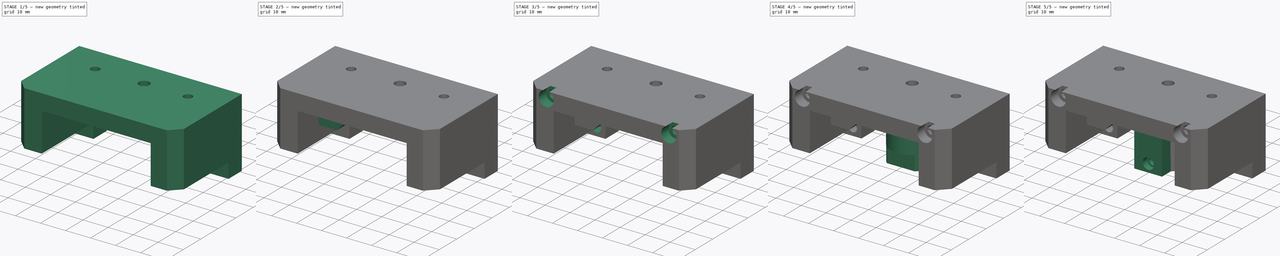
[diagram: build sequence overview — one tinted view per stage of 5, left to right]
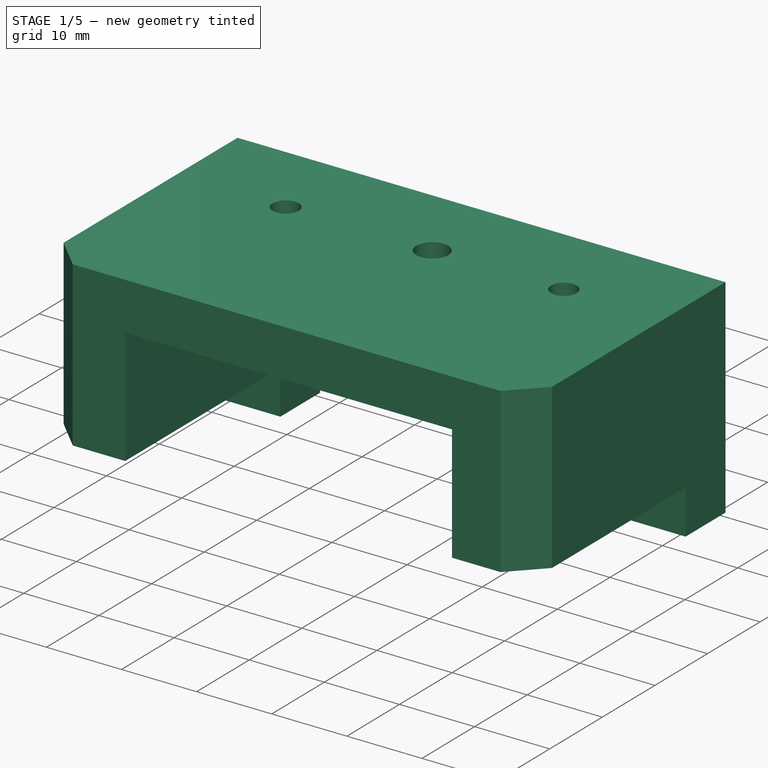
[diagram: stage 1 of 5 — iso view after this stage's code; geometry added in this stage tinted green]
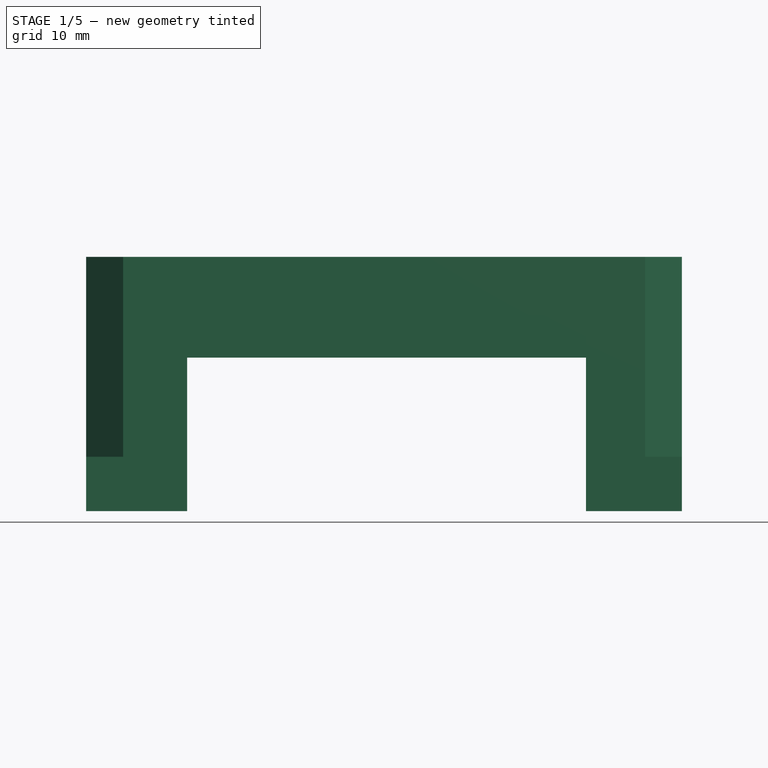
[diagram: stage 1 of 5 — front view after this stage's code; geometry added in this stage tinted green]
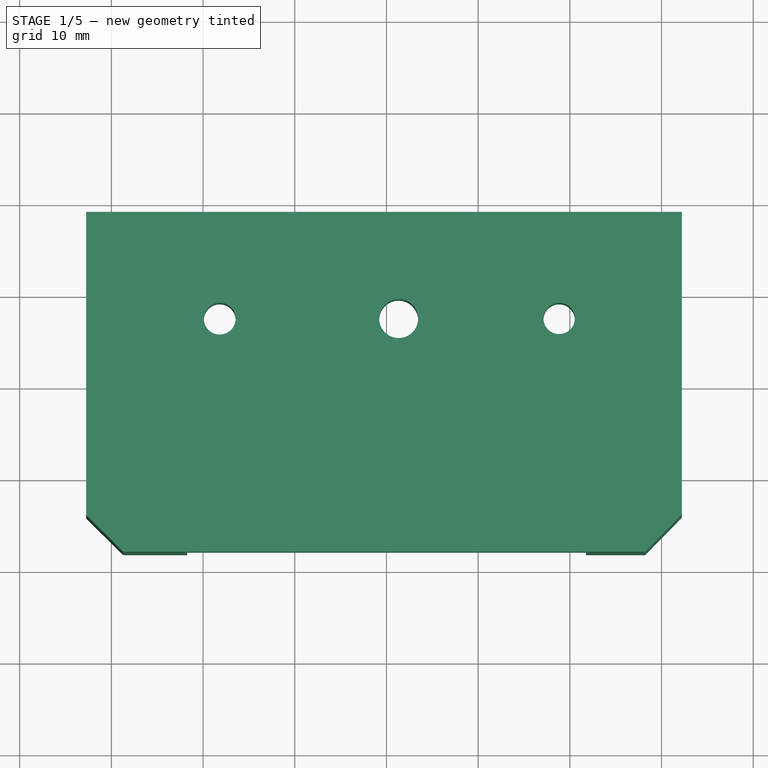
[diagram: stage 1 of 5 — top view after this stage's code; geometry added in this stage tinted green]
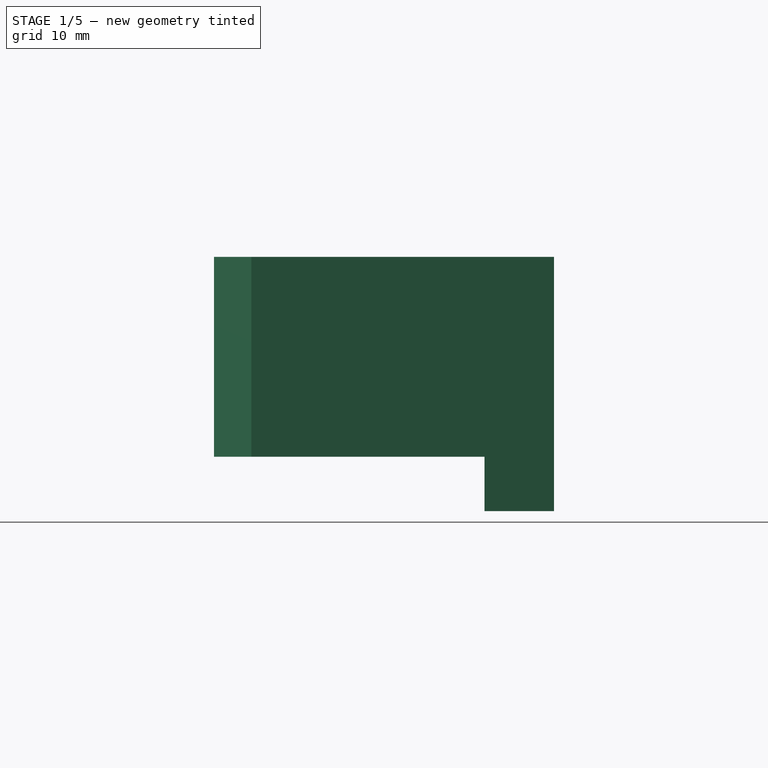
[diagram: stage 1 of 5 — right view after this stage's code; geometry added in this stage tinted green]
FCSTD DOCUMENT  (FreeCAD 0.21R33668 +26 (Git))
Label: Rook_p1p_hotend_V5
License: All rights reserved
LicenseURL: http://en.wikipedia.org/wiki/All_rights_reserved
objects: Sketcher::SketchObject×16, PartDesign::Pocket×8, PartDesign::Pad×7, PartDesign::Hole×3, PartDesign::Body×1
note: 53 computed .brp shape members not serialized (recipe doc carries the construction recipe); baked Part::Feature solids carry a one-line shape summary decoded from their .brp

FEATURE [Sketcher::SketchObject] Sketch
  AttachmentOffset = pos=(0,0,101) rot=(0,0,1;0rad)
  FullyConstrained = false
  MapMode = 5
  Placement = pos=(0,0,101) rot=(0,0,1;0rad)
  Support = -> [XY_Plane026]
  sketch-geometry (9):
    g0: LineSegment StartX=467.255 StartY=18.8238 StartZ=0 EndX=532.209 EndY=18.8238 EndZ=0
    g1: LineSegment StartX=467.255 StartY=-14.2441 StartZ=0 EndX=467.255 EndY=18.8238 EndZ=0
    g2: LineSegment StartX=528.214 StartY=-18.2425 StartZ=0 EndX=471.279 EndY=-18.2425 EndZ=0
    g3: LineSegment StartX=532.209 StartY=18.8238 StartZ=0 EndX=532.209 EndY=-14.1687 EndZ=0
    g4: LineSegment StartX=528.214 StartY=-18.2425 StartZ=0 EndX=532.209 EndY=-14.1687 EndZ=0
    g5: LineSegment StartX=467.255 StartY=-14.2441 StartZ=0 EndX=471.279 EndY=-18.2425 EndZ=0
    g6: Circle CenterX=501.329 CenterY=7.18816 CenterZ=0 NormalX=0 NormalY=0 NormalZ=1 AngleXU=0 Radius=2.12191
    g7: Circle CenterX=518.834 CenterY=7.20363 CenterZ=0 NormalX=0 NormalY=0 NormalZ=1 AngleXU=0 Radius=1.70743
    g8: Circle CenterX=481.821 CenterY=7.17706 CenterZ=0 NormalX=0 NormalY=0 NormalZ=1 AngleXU=0 Radius=1.73301
  constraints (10):
    c: Coincident(g0,g3)
    c: Coincident(g1,g0)
    c: Horizontal(g0)
    c: Vertical(g1)
    c: Horizontal(g2)
    c: Vertical(g3)
    c: Coincident(g4,g2)
    c: Coincident(g4,g3)
    c: Coincident(g5,g1)
    c: Coincident(g5,g2)
FEATURE [PartDesign::Pad] Pad
  Direction = (0,0,1)
  Length = 27.73
  Length2 = 10
  Profile = -> Sketch
  ReferenceAxis = -> Sketch [N_Axis]
  Reversed = true
  Type = 0
FEATURE [Sketcher::SketchObject] Sketch001
  AttachmentOffset = pos=(0,0,466) rot=(0,0,1;0rad)
  FullyConstrained = false
  MapMode = 5
  Placement = pos=(466,-1.035e-13,1.035e-13) rot=(0.57735,0.57735,0.57735;2.0944rad)
  Support = -> [YZ_Plane026]
  sketch-geometry (4):
    g0: LineSegment StartX=-24.7711 StartY=79.2044 StartZ=0 EndX=11.2563 EndY=79.2044 EndZ=0
    g1: LineSegment StartX=11.2563 StartY=79.2044 StartZ=0 EndX=11.2563 EndY=72.213 EndZ=0
    g2: LineSegment StartX=11.2563 StartY=72.213 StartZ=0 EndX=-24.7711 EndY=72.213 EndZ=0
    g3: LineSegment StartX=-24.7711 StartY=72.213 StartZ=0 EndX=-24.7711 EndY=79.2044 EndZ=0
  constraints (8):
    c: Coincident(g0,g1)
    c: Coincident(g1,g2)
    c: Coincident(g2,g3)
    c: Coincident(g3,g0)
    c: Horizontal(g0)
    c: Horizontal(g2)
    c: Vertical(g1)
    c: Vertical(g3)
FEATURE [PartDesign::Pocket] Pocket
  BaseFeature = -> Pad
  Direction = (-1,2e-16,-3e-16)
  Length = 58
  Length2 = 5
  Profile = -> Sketch001
  ReferenceAxis = -> Sketch001 [N_Axis]
  Reversed = true
  Type = 1
FEATURE [Sketcher::SketchObject] Sketch002
  AttachmentOffset = pos=(0,0,18.25) rot=(0,0,1;0rad)
  FullyConstrained = false
  MapMode = 5
  Placement = pos=(0,-18.25,-4.1e-15) rot=(1,0,0;1.5708rad)
  Support = -> [XZ_Plane026]
  sketch-geometry (4):
    g0: LineSegment StartX=478.257 StartY=72.9722 StartZ=0 EndX=521.767 EndY=72.9722 EndZ=0
    g1: LineSegment StartX=521.767 StartY=72.9722 StartZ=0 EndX=521.767 EndY=94.6455 EndZ=0
    g2: LineSegment StartX=521.767 StartY=94.6455 StartZ=0 EndX=478.257 EndY=94.6455 EndZ=0
    g3: LineSegment StartX=478.257 StartY=94.6455 StartZ=0 EndX=478.257 EndY=72.9722 EndZ=0
  constraints (9):
    c: Coincident(g0,g1)
    c: Coincident(g1,g2)
    c: Coincident(g2,g3)
    c: Coincident(g3,g0)
    c: Horizontal(g0)
    c: Horizontal(g2)
    c: Vertical(g1)
    c: Vertical(g3)
    c: Distance(g2) = 43.51
FEATURE [Sketcher::SketchObject] Sketch003
  AttachmentOffset = pos=(0,0,93) rot=(0,0,1;0rad)
  FullyConstrained = false
  MapMode = 5
  Placement = pos=(0,-93,-2.07e-14) rot=(1,0,0;1.5708rad)
  Support = -> [XZ_Plane026]
  sketch-geometry (4):
    g0: LineSegment StartX=478.256 StartY=72.9722 StartZ=0 EndX=521.766 EndY=72.9722 EndZ=0
    g1: LineSegment StartX=521.766 StartY=72.9722 StartZ=0 EndX=521.766 EndY=90.0049 EndZ=0
    g2: LineSegment StartX=521.766 StartY=90.0049 StartZ=0 EndX=478.256 EndY=90.0049 EndZ=0
    g3: LineSegment StartX=478.256 StartY=90.0049 StartZ=0 EndX=478.256 EndY=72.9722 EndZ=0
  constraints (9):
    c: Coincident(g0,g1)
    c: Coincident(g1,g2)
    c: Coincident(g2,g3)
    c: Coincident(g3,g0)
    c: Horizontal(g0)
    c: Horizontal(g2)
    c: Vertical(g1)
    c: Vertical(g3)
    c: Distance(g2) = 43.51
FEATURE [PartDesign::Pocket] Pocket001
  BaseFeature = -> Pocket
  Direction = (0,1,-2e-16)
  Length = 5
  Length2 = 5
  Profile = -> Sketch003
  ReferenceAxis = -> Sketch003 [N_Axis]
  Type = 1
FEATURE [PartDesign::Pocket] Pocket002
  BaseFeature = -> Pocket001
  Direction = (0,1,-2e-16)
  Length = 12
  Length2 = 5
  Profile = -> Sketch002
  ReferenceAxis = -> Sketch002 [N_Axis]
  Type = 0
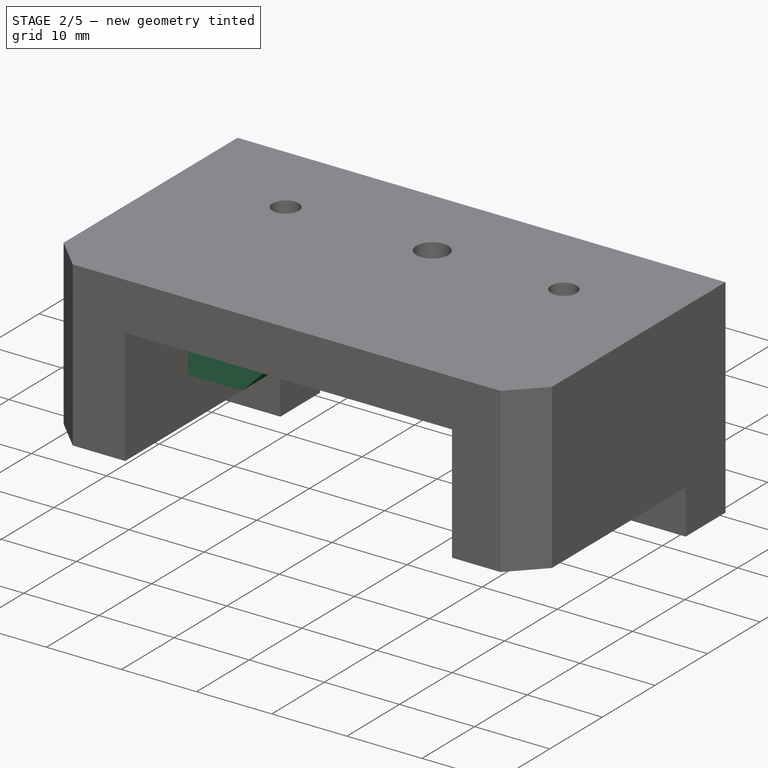
[diagram: stage 2 of 5 — iso view after this stage's code; geometry added in this stage tinted green]
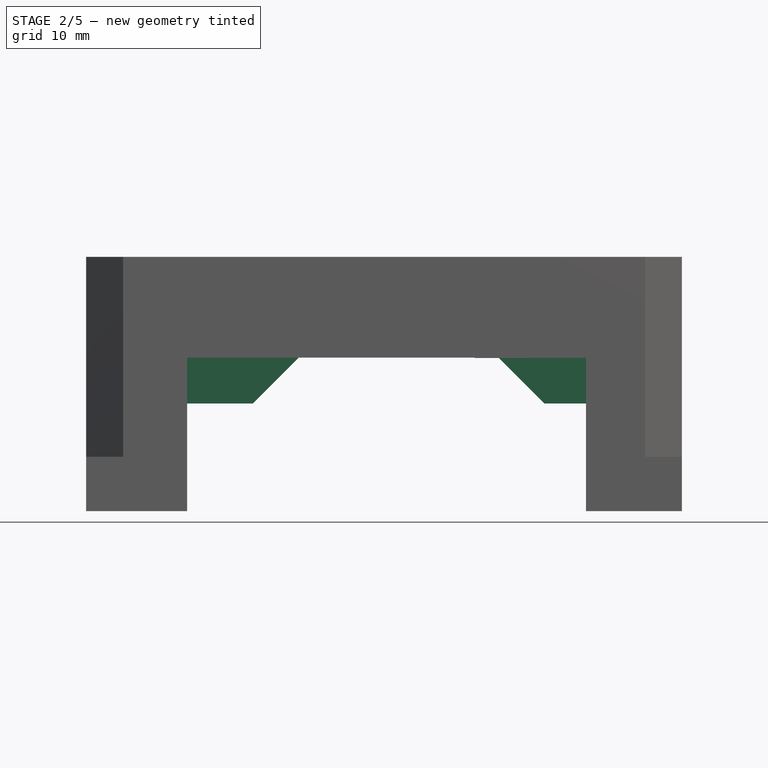
[diagram: stage 2 of 5 — front view after this stage's code; geometry added in this stage tinted green]
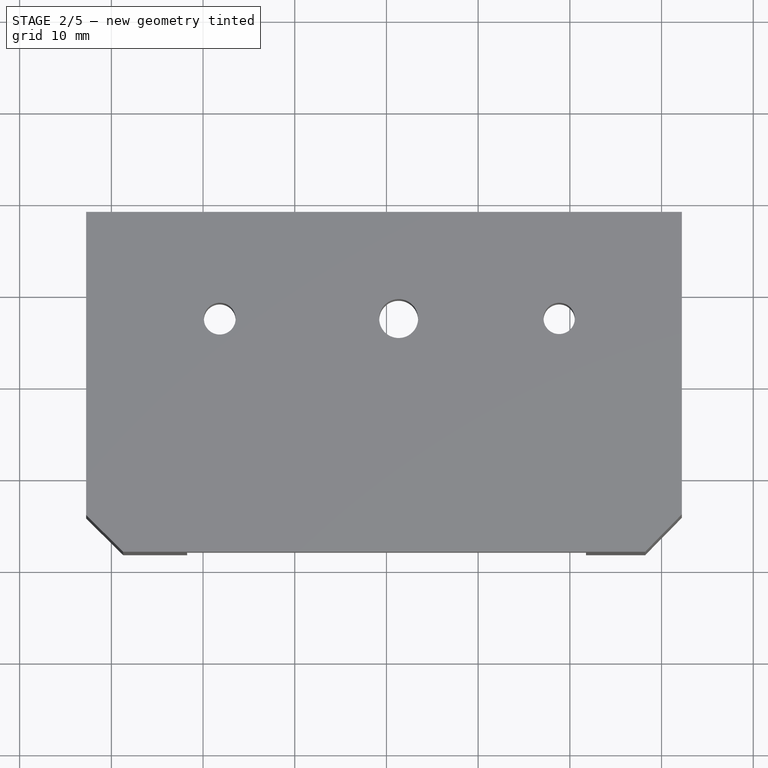
[diagram: stage 2 of 5 — top view after this stage's code; geometry added in this stage tinted green]
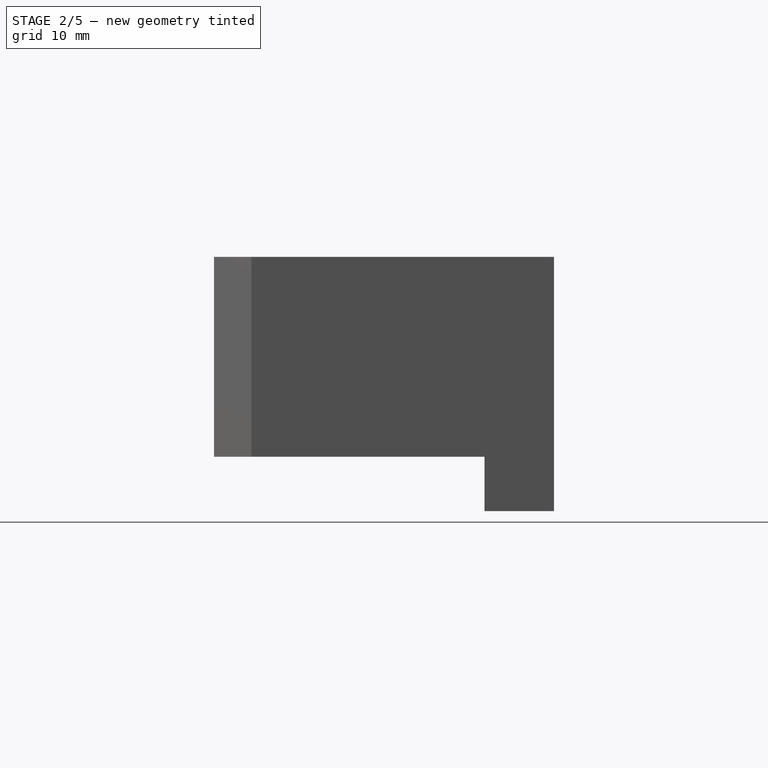
[diagram: stage 2 of 5 — right view after this stage's code; geometry added in this stage tinted green]
FEATURE [Sketcher::SketchObject] Sketch004
  FullyConstrained = false
  MapMode = 5
  Placement = pos=(0,1.98e-14,90.0049) rot=(1,0,0;3.14159rad)
  Support = -> [Pocket002]
  sketch-geometry (4):
    g0: LineSegment StartX=490.391 StartY=6.25 StartZ=0 EndX=478.261 EndY=6.25 EndZ=0
    g1: LineSegment StartX=478.261 StartY=6.25 StartZ=0 EndX=478.261 EndY=0.4 EndZ=0
    g2: LineSegment StartX=478.261 StartY=0.4 StartZ=0 EndX=490.391 EndY=0.4 EndZ=0
    g3: LineSegment StartX=490.391 StartY=0.4 StartZ=0 EndX=490.391 EndY=6.25 EndZ=0
  constraints (10):
    c: Coincident(g0,g1)
    c: Coincident(g1,g2)
    c: Coincident(g2,g3)
    c: Coincident(g3,g0)
    c: Horizontal(g0)
    c: Horizontal(g2)
    c: Vertical(g1)
    c: Vertical(g3)
    c: Distance(g0) = 12.13
    c: Distance(g1) = 5.85
FEATURE [Sketcher::SketchObject] Sketch005
  FullyConstrained = false
  MapMode = 5
  Placement = pos=(0,1.98e-14,90.0049) rot=(1,0,0;3.14159rad)
  Support = -> [Pocket002]
  sketch-geometry (4):
    g0: LineSegment StartX=521.767 StartY=6.25 StartZ=0 EndX=509.637 EndY=6.25 EndZ=0
    g1: LineSegment StartX=509.637 StartY=6.25 StartZ=0 EndX=509.637 EndY=0.4 EndZ=0
    g2: LineSegment StartX=509.637 StartY=0.4 StartZ=0 EndX=521.767 EndY=0.4 EndZ=0
    g3: LineSegment StartX=521.767 StartY=0.4 StartZ=0 EndX=521.767 EndY=6.25 EndZ=0
  constraints (10):
    c: Coincident(g0,g1)
    c: Coincident(g1,g2)
    c: Coincident(g2,g3)
    c: Coincident(g3,g0)
    c: Horizontal(g0)
    c: Horizontal(g2)
    c: Vertical(g1)
    c: Vertical(g3)
    c: Distance(g0) = 12.13
    c: Distance(g1) = 5.85
FEATURE [PartDesign::Pad] Pad001
  BaseFeature = -> Pocket002
  Direction = (0,-2e-16,-1)
  Length = 5
  Length2 = 10
  Profile = -> Sketch004
  ReferenceAxis = -> Sketch004 [N_Axis]
  Type = 0
FEATURE [PartDesign::Pad] Pad002
  BaseFeature = -> Pad001
  Direction = (0,-2e-16,-1)
  Length = 5
  Length2 = 10
  Profile = -> Sketch005
  ReferenceAxis = -> Sketch005 [N_Axis]
  Type = 0
FEATURE [Sketcher::SketchObject] Sketch006
  AttachmentOffset = pos=(0,-0.04,0) rot=(0,0,1;0rad)
  FullyConstrained = false
  MapMode = 5
  Placement = pos=(0,0,-0.04) rot=(1,0,0;1.5708rad)
  Support = -> [XZ_Plane026]
  sketch-geometry (6):
    g0: LineSegment StartX=485.387 StartY=85.0046 StartZ=0 EndX=490.388 EndY=90.0049 EndZ=0
    g1: LineSegment StartX=490.388 StartY=90.0049 StartZ=0 EndX=512.26 EndY=90.0049 EndZ=0
    g2: LineSegment StartX=512.26 StartY=90.0049 StartZ=0 EndX=518.53 EndY=83.7398 EndZ=0
    g3: LineSegment StartX=518.53 StartY=83.7398 StartZ=0 EndX=506.465 EndY=74.7347 EndZ=0
    g4: LineSegment StartX=506.465 StartY=74.7347 StartZ=0 EndX=486.023 EndY=78.8231 EndZ=0
    g5: LineSegment StartX=486.023 StartY=78.8231 StartZ=0 EndX=485.387 EndY=85.0046 EndZ=0
  constraints (7):
    c: Coincident(g0,g1)
    c: Horizontal(g1)
    c: Coincident(g1,g2)
    c: Coincident(g2,g3)
    c: Coincident(g3,g4)
    c: Coincident(g4,g5)
    c: Coincident(g5,g0)
FEATURE [PartDesign::Pocket] Pocket003
  BaseFeature = -> Pad002
  Direction = (0,1,-2e-16)
  Length = 8
  Length2 = 5
  Profile = -> Sketch006
  ReferenceAxis = -> Sketch006 [N_Axis]
  Reversed = true
  Type = 0
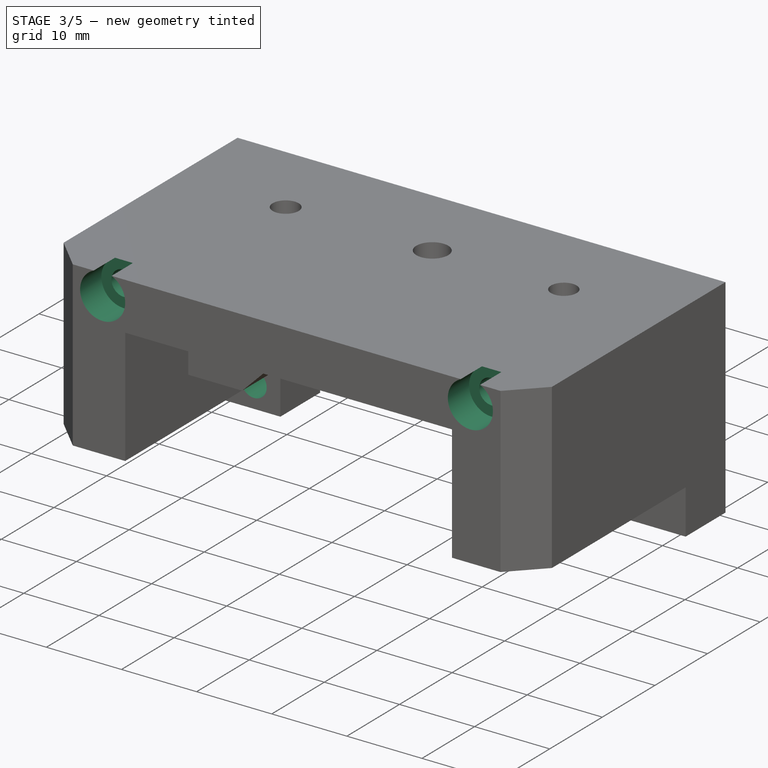
[diagram: stage 3 of 5 — iso view after this stage's code; geometry added in this stage tinted green]
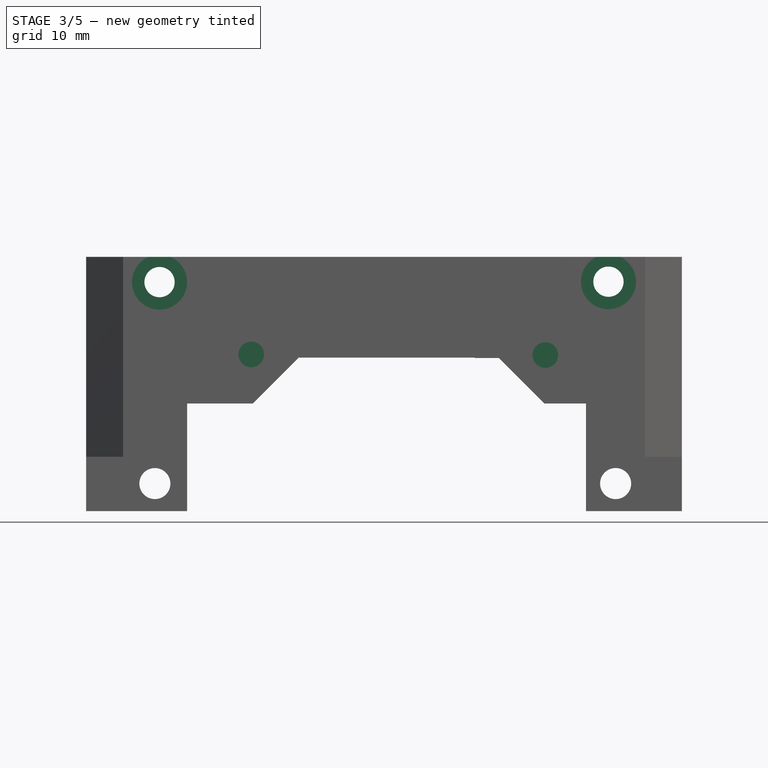
[diagram: stage 3 of 5 — front view after this stage's code; geometry added in this stage tinted green]
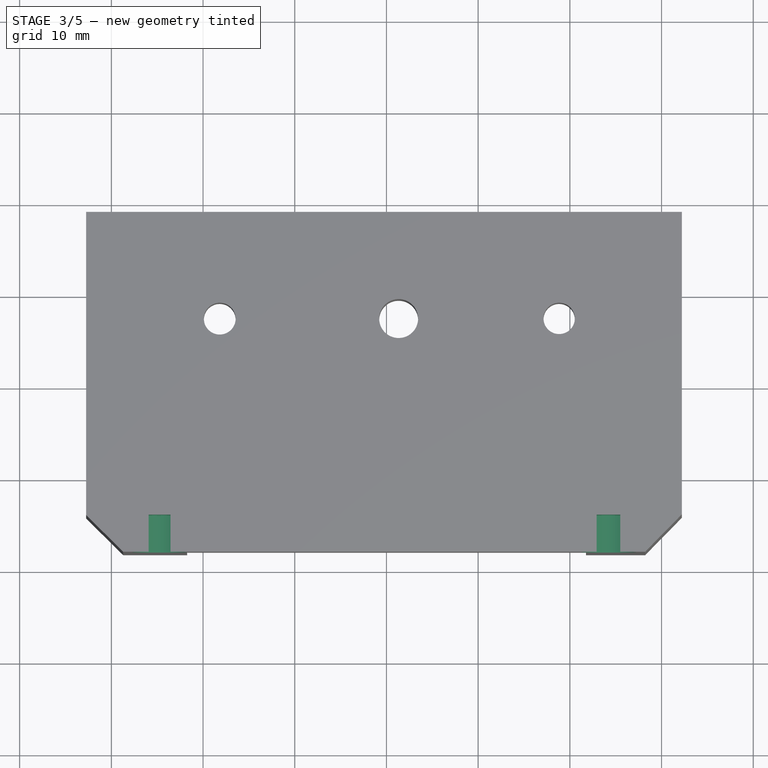
[diagram: stage 3 of 5 — top view after this stage's code; geometry added in this stage tinted green]
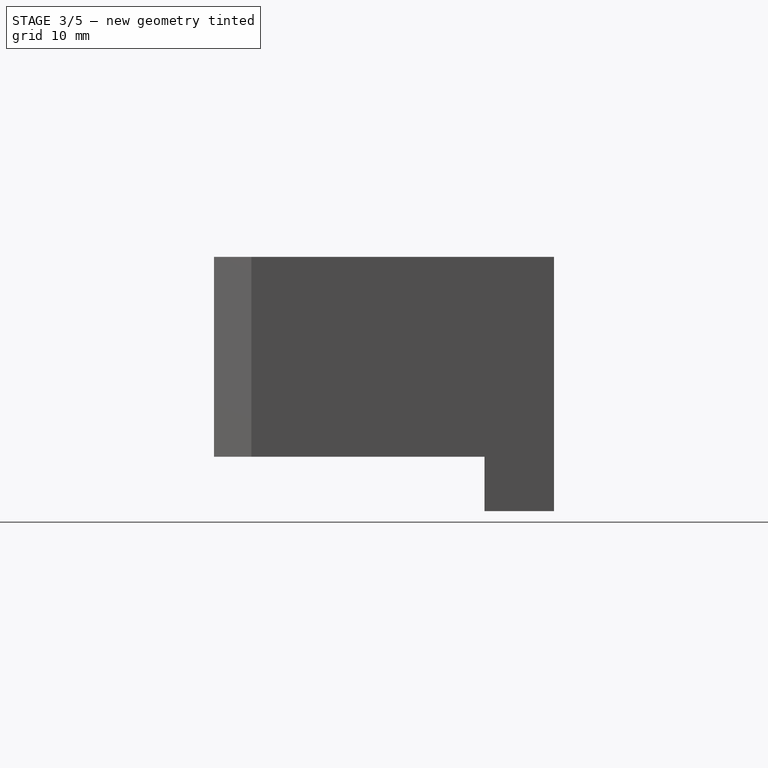
[diagram: stage 3 of 5 — right view after this stage's code; geometry added in this stage tinted green]
FEATURE [Sketcher::SketchObject] Sketch007
  AttachmentOffset = pos=(0,0,19) rot=(0,0,1;0rad)
  FullyConstrained = false
  MapMode = 5
  Placement = pos=(0,-19,-4.2e-15) rot=(1,0,0;1.5708rad)
  Support = -> [XZ_Plane026]
  sketch-geometry (2):
    g0: Circle CenterX=475.255 CenterY=98.2471 CenterZ=0 NormalX=0 NormalY=0 NormalZ=1 AngleXU=0 Radius=1.70332
    g1: Circle CenterX=524.209 CenterY=98.2915 CenterZ=0 NormalX=0 NormalY=0 NormalZ=1 AngleXU=0 Radius=1.66193
FEATURE [Sketcher::SketchObject] Sketch008
  FullyConstrained = false
  MapMode = 5
  Placement = pos=(0,0,0) rot=(1,0,0;1.5708rad)
  Support = -> [XZ_Plane026]
  sketch-geometry (2):
    g0: Circle CenterX=474.746 CenterY=76.2759 CenterZ=0 NormalX=0 NormalY=0 NormalZ=1 AngleXU=0 Radius=1.69096
    g1: Circle CenterX=524.989 CenterY=76.2778 CenterZ=0 NormalX=0 NormalY=0 NormalZ=1 AngleXU=0 Radius=1.69436
FEATURE [PartDesign::Hole] Hole
  BaseFeature = -> Pocket003
  CustomThreadClearance = 0
  Depth = 42
  DepthType = 0
  Diameter = 3.3
  DrillForDepth = false
  DrillPoint = 1
  DrillPointAngle = 118
  HoleCutCountersinkAngle = 90
  HoleCutCustomValues = false
  HoleCutDepth = 4.8
  HoleCutDiameter = 6
  HoleCutType = 1
  ModelThread = false
  Profile = -> Sketch007
  Tapered = false
  TaperedAngle = 90
  ThreadClass = 0
  ThreadDepth = 42
  ThreadDepthType = 0
  ThreadDirection = 0
  ThreadFit = 0
  ThreadSize = 0
  ThreadType = 0
  Threaded = false
  UseCustomThreadClearance = false
FEATURE [PartDesign::Pocket] Pocket004
  BaseFeature = -> Hole
  Direction = (0,1,-2e-16)
  Length = 37
  Length2 = 5
  Profile = -> Sketch008
  ReferenceAxis = -> Sketch008 [N_Axis]
  Type = 0
FEATURE [Sketcher::SketchObject] Sketch009
  AttachmentOffset = pos=(0,0,90) rot=(0,0,1;0rad)
  FullyConstrained = false
  MapMode = 5
  Placement = pos=(0,0,90) rot=(0,0,1;0rad)
  Support = -> [XY_Plane026]
  sketch-geometry (14):
    g0: LineSegment StartX=480.22 StartY=9.98577 StartZ=0 EndX=478.589 EndY=7.21392 EndZ=0
    g1: LineSegment StartX=478.589 StartY=7.21392 StartZ=0 EndX=480.173 EndY=4.41503 EndZ=0
    g2: LineSegment StartX=480.173 StartY=4.41503 StartZ=0 EndX=483.39 EndY=4.38799 EndZ=0
    g3: LineSegment StartX=483.39 StartY=4.38799 StartZ=0 EndX=485.021 EndY=7.15984 EndZ=0
    g4: LineSegment StartX=485.021 StartY=7.15984 StartZ=0 EndX=483.437 EndY=9.95873 EndZ=0
    g5: LineSegment StartX=483.437 StartY=9.95873 StartZ=0 EndX=480.22 EndY=9.98577 EndZ=0
    g6: Circle CenterX=481.805 CenterY=7.18688 CenterZ=0 NormalX=0 NormalY=0 NormalZ=1 AngleXU=0 Radius=3.21638
    g7: LineSegment StartX=518.801 StartY=10.3632 StartZ=0 EndX=516.042 EndY=8.71248 EndZ=0
    g8: LineSegment StartX=516.042 StartY=8.71248 StartZ=0 EndX=516.092 EndY=5.49787 EndZ=0
    g9: LineSegment StartX=516.092 StartY=5.49787 StartZ=0 EndX=518.901 EndY=3.93401 EndZ=0
    g10: LineSegment StartX=518.901 StartY=3.93401 StartZ=0 EndX=521.66 EndY=5.58477 EndZ=0
    g11: LineSegment StartX=521.66 StartY=5.58477 StartZ=0 EndX=521.61 EndY=8.79937 EndZ=0
    g12: LineSegment StartX=521.61 StartY=8.79937 StartZ=0 EndX=518.801 EndY=10.3632 EndZ=0
    g13: Circle CenterX=518.851 CenterY=7.14862 CenterZ=0 NormalX=0 NormalY=0 NormalZ=1 AngleXU=0 Radius=3.215
  constraints (27):
    c: Coincident(g0,g1)
    c: Coincident(g1,g2)
    c: Coincident(g2,g3)
    c: Coincident(g3,g4)
    c: Coincident(g4,g5)
    c: Coincident(g5,g0)
    c: Equal(g0, g1-g5) x5
    c: PointOnObject(g0,g6)
    c: PointOnObject(g1,g6)
    c: PointOnObject(g2,g6)
    c: PointOnObject(g3,g6)
    c: PointOnObject(g4,g6)
    c: PointOnObject(g5,g6)
    c: Coincident(g7,g8)
    c: Coincident(g8,g9)
    c: Coincident(g9,g10)
    c: Coincident(g10,g11)
    c: Coincident(g11,g12)
    c: Coincident(g12,g7)
    c: Equal(g7, g8-g12) x5
    c: PointOnObject(g7,g13)
    c: PointOnObject(g8,g13)
    c: PointOnObject(g9,g13)
    c: PointOnObject(g10,g13)
    c: PointOnObject(g11,g13)
    c: PointOnObject(g12,g13)
    c: Diameter(g13) = 6.43
FEATURE [PartDesign::Pocket] Pocket005
  BaseFeature = -> Pocket004
  Direction = (0,0,-1)
  Length = 3
  Length2 = 5
  Profile = -> Sketch009
  ReferenceAxis = -> Sketch009 [N_Axis]
  Reversed = true
  Type = 0
FEATURE [Sketcher::SketchObject] Sketch010
  AttachmentOffset = pos=(0,0,7) rot=(0,0,1;0rad)
  FullyConstrained = false
  MapMode = 5
  Placement = pos=(0,-7,-1.6e-15) rot=(1,0,0;1.5708rad)
  Support = -> [XZ_Plane026]
  sketch-geometry (2):
    g0: Circle CenterX=485.259 CenterY=90.3619 CenterZ=0 NormalX=0 NormalY=0 NormalZ=1 AngleXU=0 Radius=1.39557
    g1: Circle CenterX=517.328 CenterY=90.2942 CenterZ=0 NormalX=0 NormalY=0 NormalZ=1 AngleXU=0 Radius=1.39505
FEATURE [PartDesign::Pocket] Pocket006
  BaseFeature = -> Pocket005
  Direction = (0,1,-2e-16)
  Length = 5.42
  Length2 = 5
  Profile = -> Sketch010
  ReferenceAxis = -> Sketch010 [N_Axis]
  Type = 0
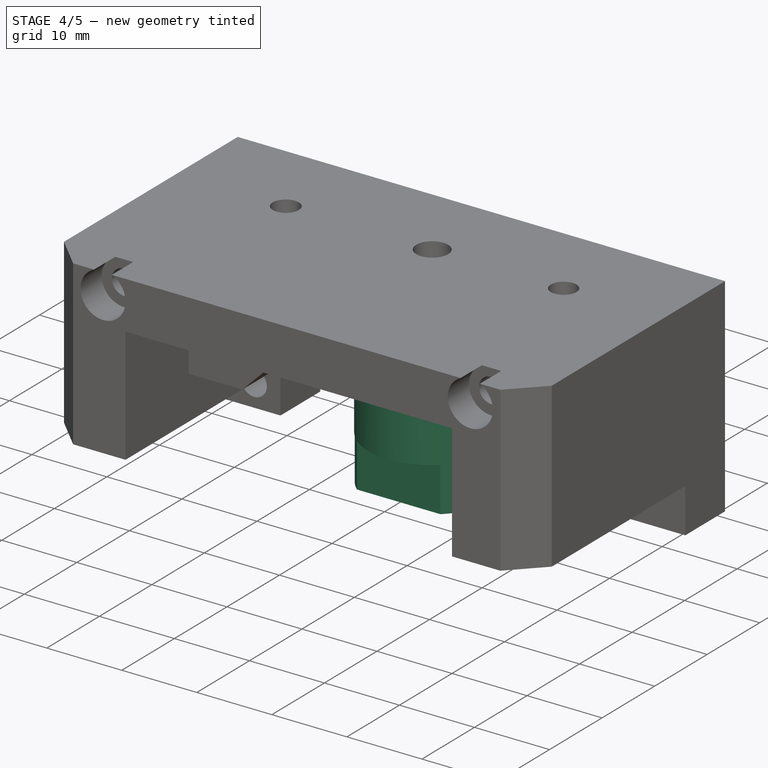
[diagram: stage 4 of 5 — iso view after this stage's code; geometry added in this stage tinted green]
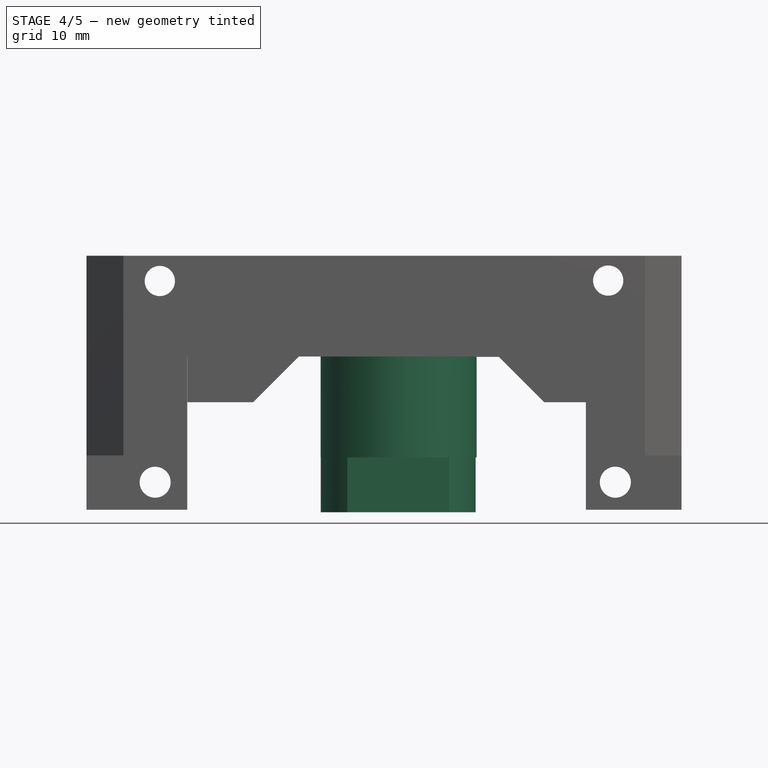
[diagram: stage 4 of 5 — front view after this stage's code; geometry added in this stage tinted green]
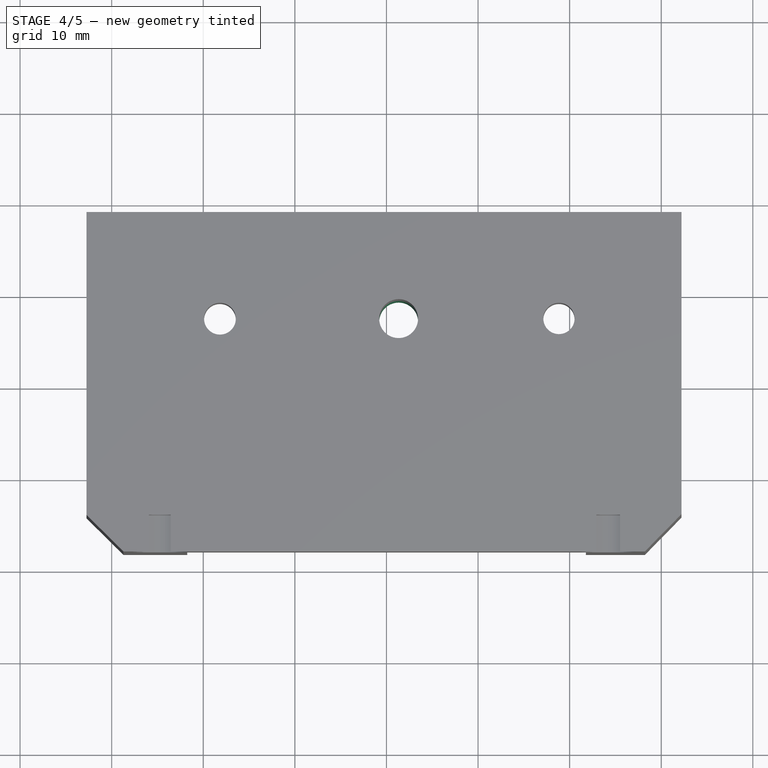
[diagram: stage 4 of 5 — top view after this stage's code; geometry added in this stage tinted green]
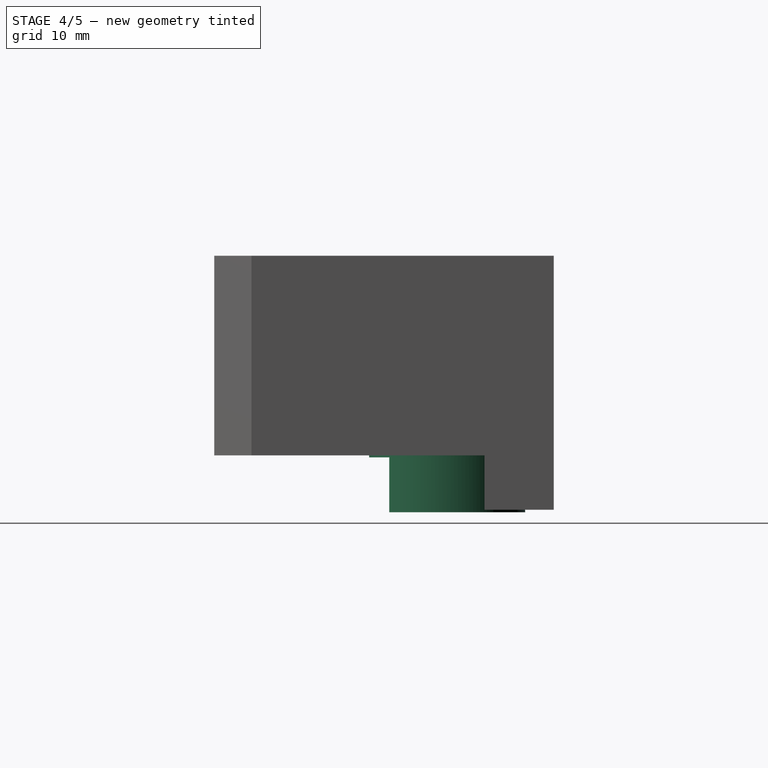
[diagram: stage 4 of 5 — right view after this stage's code; geometry added in this stage tinted green]
FEATURE [Sketcher::SketchObject] Sketch011
  AttachmentOffset = pos=(0,0,79) rot=(0,0,1;0rad)
  FullyConstrained = false
  MapMode = 5
  Placement = pos=(0,0,79) rot=(0,0,1;0rad)
  Support = -> [XY_Plane026]
  sketch-geometry (2):
    g0: Circle CenterX=475.334 CenterY=4.79612 CenterZ=0 NormalX=0 NormalY=0 NormalZ=1 AngleXU=0 Radius=1.39555
    g1: Circle CenterX=475.334 CenterY=-13.1939 CenterZ=0 NormalX=0 NormalY=0 NormalZ=1 AngleXU=0 Radius=1.39943
  constraints (2):
    c: Distance(g0,g1) = 17.99
    c: DistanceY(g1,g0) = 17.99
FEATURE [PartDesign::Pocket] Pocket007
  BaseFeature = -> Pocket006
  Direction = (0,0,-1)
  Length = 8.6
  Length2 = 5
  Profile = -> Sketch011
  ReferenceAxis = -> Sketch011 [N_Axis]
  Reversed = true
  Type = 0
FEATURE [Sketcher::SketchObject] Sketch012
  FullyConstrained = false
  MapMode = 5
  Placement = pos=(0,1.98e-14,90.0049) rot=(1,0,0;3.14159rad)
  Support = -> [Pocket007]
  sketch-geometry (2):
    g0: Circle CenterX=501.331 CenterY=-7.18516 CenterZ=0 NormalX=0 NormalY=0 NormalZ=1 AngleXU=0 Radius=2.1255
    g1: Circle CenterX=501.331 CenterY=-7.18516 CenterZ=0 NormalX=0 NormalY=0 NormalZ=1 AngleXU=0 Radius=8.51994
  constraints (1):
    c: Coincident(g1,g0)
FEATURE [PartDesign::Pad] Pad003
  BaseFeature = -> Pocket007
  Direction = (0,-2e-16,-1)
  Length = 11.01
  Length2 = 10
  Profile = -> Sketch012
  ReferenceAxis = -> Sketch012 [N_Axis]
  Type = 0
FEATURE [Sketcher::SketchObject] Sketch013
  AttachmentOffset = pos=(0,0,79) rot=(0,0,1;0rad)
  FullyConstrained = false
  MapMode = 5
  Placement = pos=(0,0,79) rot=(0,0,1;0rad)
  Support = -> [XY_Plane026]
  sketch-geometry (6):
    g0: LineSegment StartX=497.543 StartY=13.1653 StartZ=0 EndX=505.05 EndY=13.1653 EndZ=0
    g1: LineSegment StartX=505.05 StartY=13.1653 StartZ=0 EndX=505.05 EndY=1.15158 EndZ=0
    g2: LineSegment StartX=505.05 StartY=1.15158 StartZ=0 EndX=497.543 EndY=1.15158 EndZ=0
    g3: LineSegment StartX=497.543 StartY=1.15158 StartZ=0 EndX=497.543 EndY=13.1653 EndZ=0
    g4: ArcOfCircle CenterX=501.281 CenterY=7.24225 CenterZ=0 NormalX=0 NormalY=0 NormalZ=1 AngleXU=0 Radius=8.45271 StartAngle=5.42826 EndAngle=10.2797
    g5: LineSegment StartX=495.734 StartY=0.86452 StartZ=0 EndX=506.828 EndY=0.86452 EndZ=0
  constraints (11):
    c: Coincident(g0,g1)
    c: Coincident(g1,g2)
    c: Coincident(g2,g3)
    c: Coincident(g3,g0)
    c: Horizontal(g0)
    c: Horizontal(g2)
    c: Vertical(g1)
    c: Vertical(g3)
    c: Horizontal(g4,g4)
    c: Coincident(g5,g4)
    c: Coincident(g5,g4)
FEATURE [PartDesign::Pad] Pad004
  BaseFeature = -> Pad003
  Direction = (0,0,1)
  Length = 6
  Length2 = 10
  Profile = -> Sketch013
  ReferenceAxis = -> Sketch013 [N_Axis]
  Reversed = true
  Type = 0
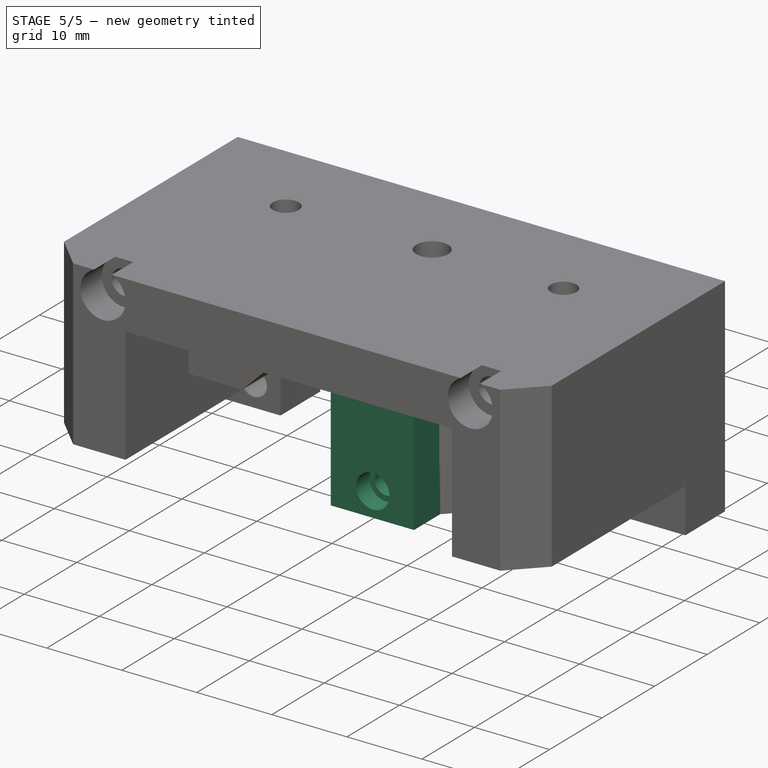
[diagram: stage 5 of 5 — iso view after this stage's code; geometry added in this stage tinted green]
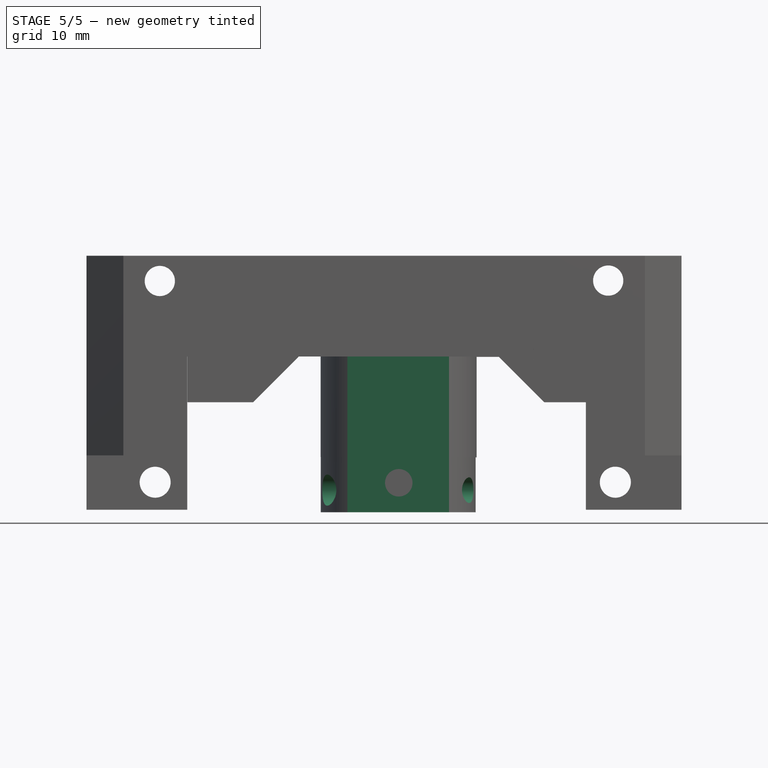
[diagram: stage 5 of 5 — front view after this stage's code; geometry added in this stage tinted green]
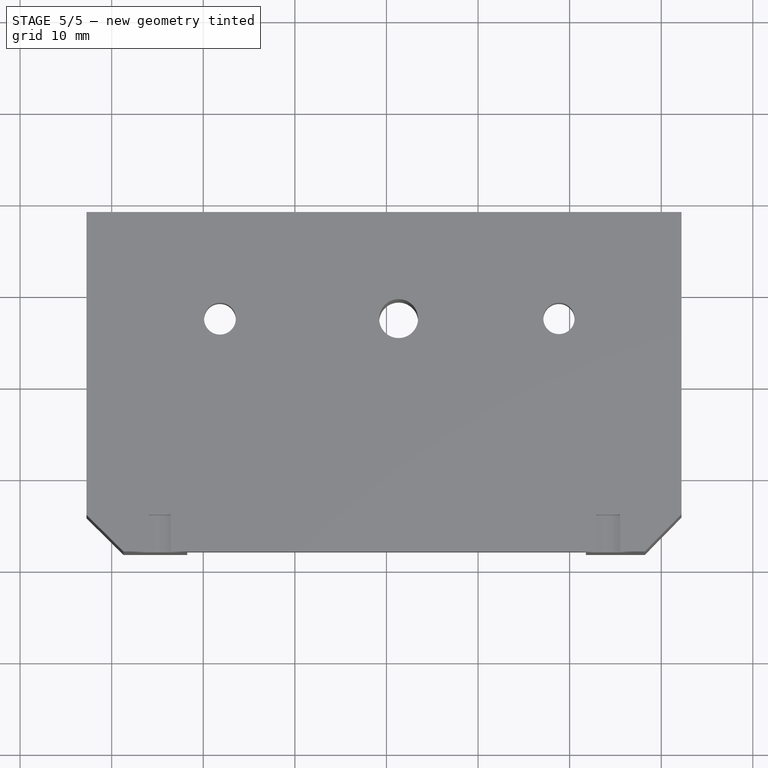
[diagram: stage 5 of 5 — top view after this stage's code; geometry added in this stage tinted green]
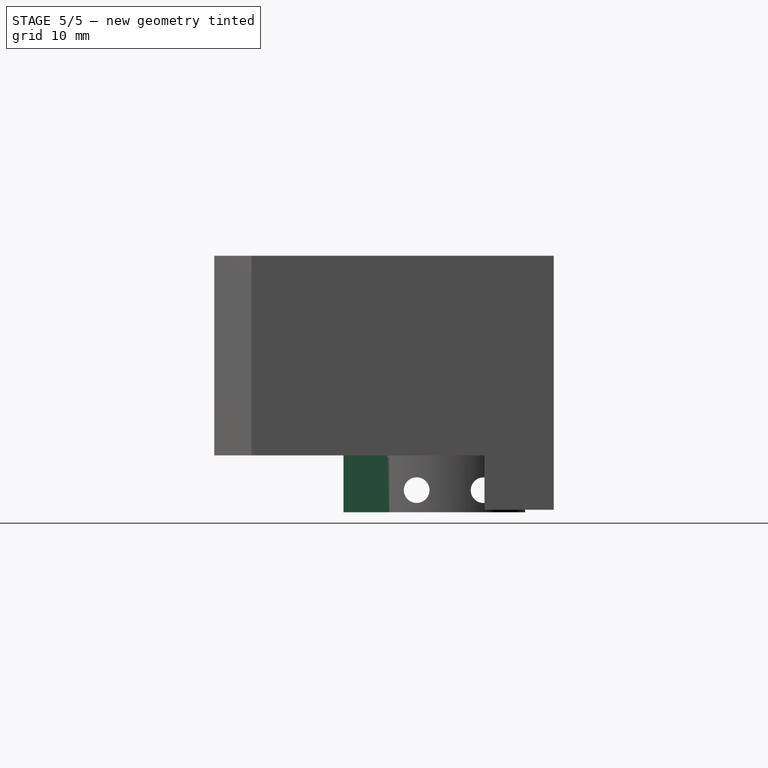
[diagram: stage 5 of 5 — right view after this stage's code; geometry added in this stage tinted green]
FEATURE [Sketcher::SketchObject] Sketch014
  AttachmentOffset = pos=(0,0,491) rot=(0,0,1;0rad)
  FullyConstrained = false
  MapMode = 5
  Placement = pos=(491,-1.09e-13,1.09e-13) rot=(0.57735,0.57735,0.57735;2.0944rad)
  Support = -> [YZ_Plane026]
  sketch-geometry (2):
    g0: Circle CenterX=3.85686 CenterY=75.4144 CenterZ=0 NormalX=0 NormalY=0 NormalZ=1 AngleXU=0 Radius=1.49748
    g1: Circle CenterX=11.1636 CenterY=75.4052 CenterZ=0 NormalX=0 NormalY=0 NormalZ=1 AngleXU=0 Radius=1.49748
FEATURE [PartDesign::Hole] Hole001
  BaseFeature = -> Pad004
  CustomThreadClearance = 0
  Depth = 25
  DepthType = 0
  Diameter = 2.8
  DrillForDepth = false
  DrillPoint = 1
  DrillPointAngle = 118
  HoleCutCountersinkAngle = 90
  HoleCutCustomValues = false
  HoleCutDepth = 4.2
  HoleCutDiameter = 3.4
  HoleCutType = 1
  ModelThread = false
  Profile = -> Sketch014
  Reversed = true
  Tapered = false
  TaperedAngle = 90
  ThreadClass = 0
  ThreadDepth = 25
  ThreadDepthType = 0
  ThreadDirection = 0
  ThreadFit = 0
  ThreadSize = 0
  ThreadType = 0
  Threaded = false
  UseCustomThreadClearance = false
FEATURE [PartDesign::Pad] Pad005
  BaseFeature = -> Hole001
  Direction = (0,-1,0)
  Length = 5
  Length2 = 10
  Profile = -> Hole001 [Face79]
  Type = 0
FEATURE [Sketcher::SketchObject] Sketch015
  AttachmentOffset = pos=(0,0,5) rot=(0,0,1;0rad)
  FullyConstrained = false
  MapMode = 5
  Placement = pos=(0,-5,-1.1e-15) rot=(1,0,0;1.5708rad)
  Support = -> [XZ_Plane026]
  sketch-geometry (1):
    g0: Circle CenterX=501.344 CenterY=76.2159 CenterZ=0 NormalX=0 NormalY=0 NormalZ=1 AngleXU=0 Radius=2.21752
FEATURE [PartDesign::Hole] Hole002
  BaseFeature = -> Pad005
  CustomThreadClearance = 0
  Depth = 15
  DepthType = 0
  Diameter = 3
  DrillForDepth = false
  DrillPoint = 1
  DrillPointAngle = 118
  HoleCutCountersinkAngle = 90
  HoleCutCustomValues = false
  HoleCutDepth = 3.4
  HoleCutDiameter = 4.44
  HoleCutType = 1
  ModelThread = false
  Profile = -> Sketch015
  Tapered = false
  TaperedAngle = 90
  ThreadClass = 0
  ThreadDepth = 15
  ThreadDepthType = 0
  ThreadDirection = 0
  ThreadFit = 0
  ThreadSize = 0
  ThreadType = 0
  Threaded = false
  UseCustomThreadClearance = false
FEATURE [PartDesign::Pad] Pad006
  BaseFeature = -> Hole002
  Direction = (0,0,1)
  Length = 10
  Length2 = 10
  Profile = -> Hole002 [Face77]
  Type = 2
FEATURE [PartDesign::Body] Body
  Group = -> [Sketch,Pad,Sketch001,Pocket,Sketch002,Sketch003,Pocket001,Pocket002,Sketch004,Sketch005,Pad001,Pad002,Sketch006,Pocket003,Sketch007,Sketch008,Hole,Pocket004,Sketch009,Pocket005,Sketch010,Pocket006,Sketch011,Pocket007,Sketch012,Pad003,Sketch013,Pad004,Sketch014,Hole001,Pad005,Sketch015,Hole002,Pad006]
  Origin = -> Origin026
  Tip = -> Pad006
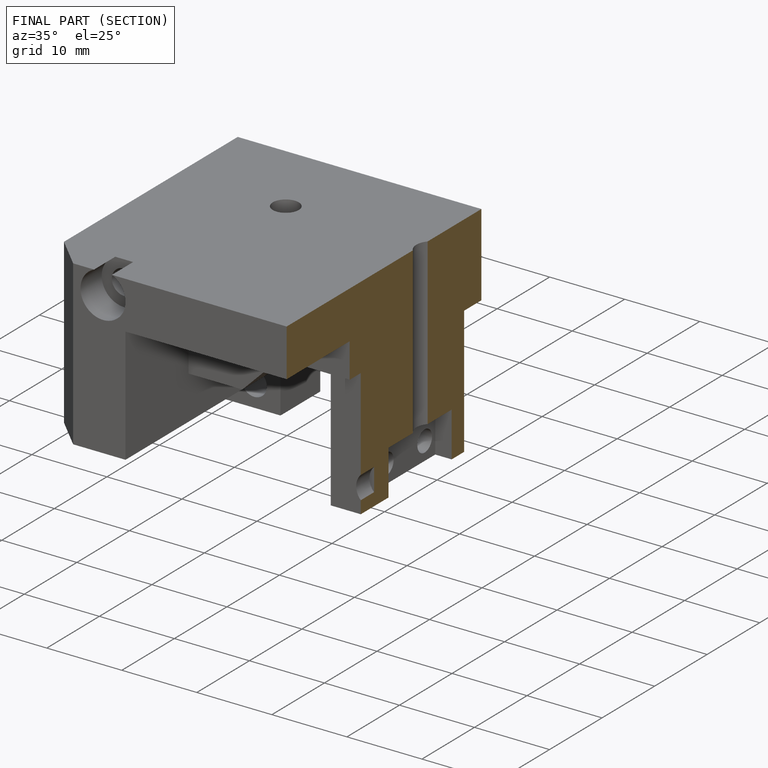
[diagram: finished part — half-section view (interior)]
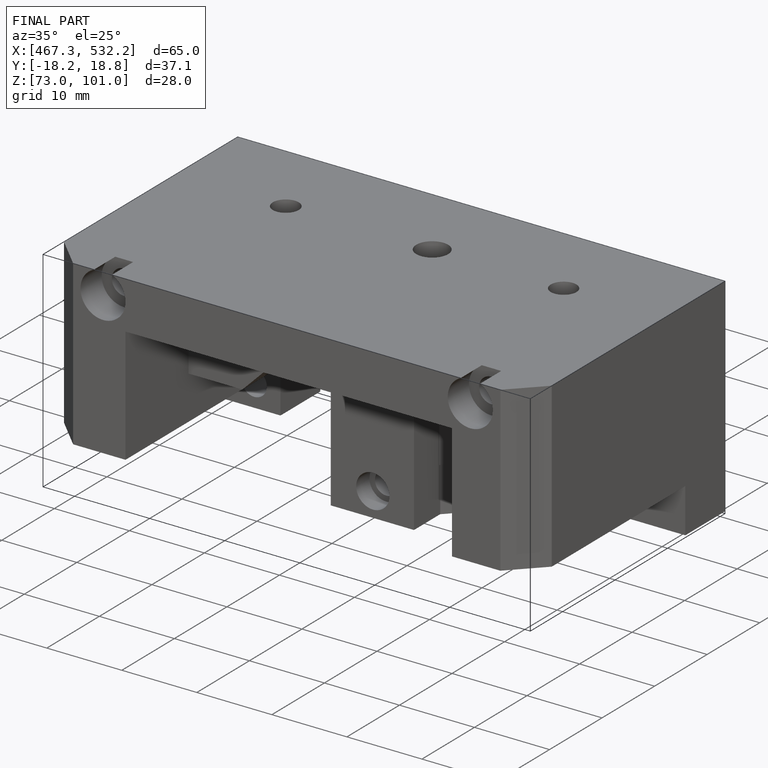
[diagram: finished part — iso view with bounding-box wireframe]
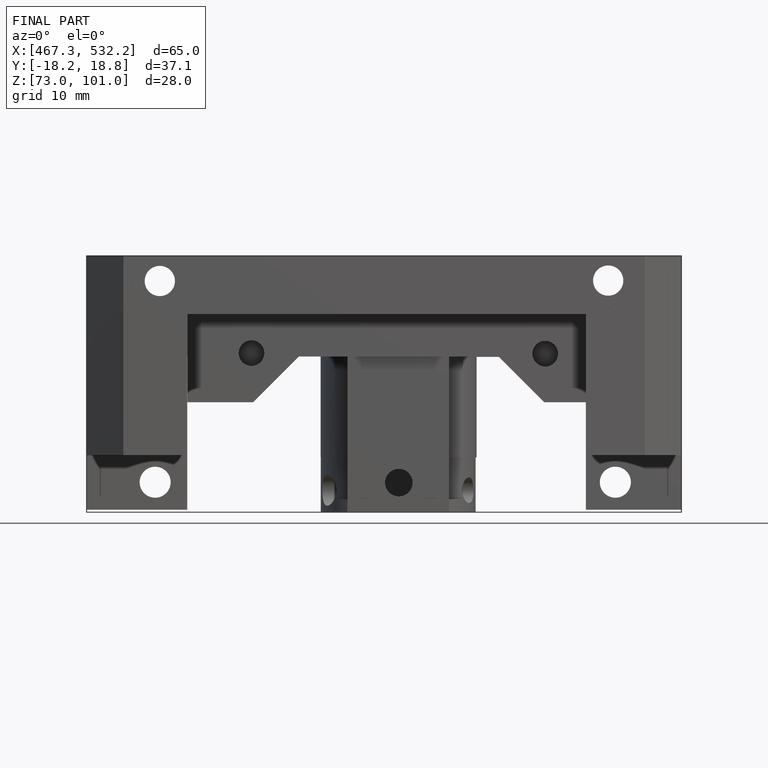
[diagram: finished part — front view with bounding-box wireframe]
